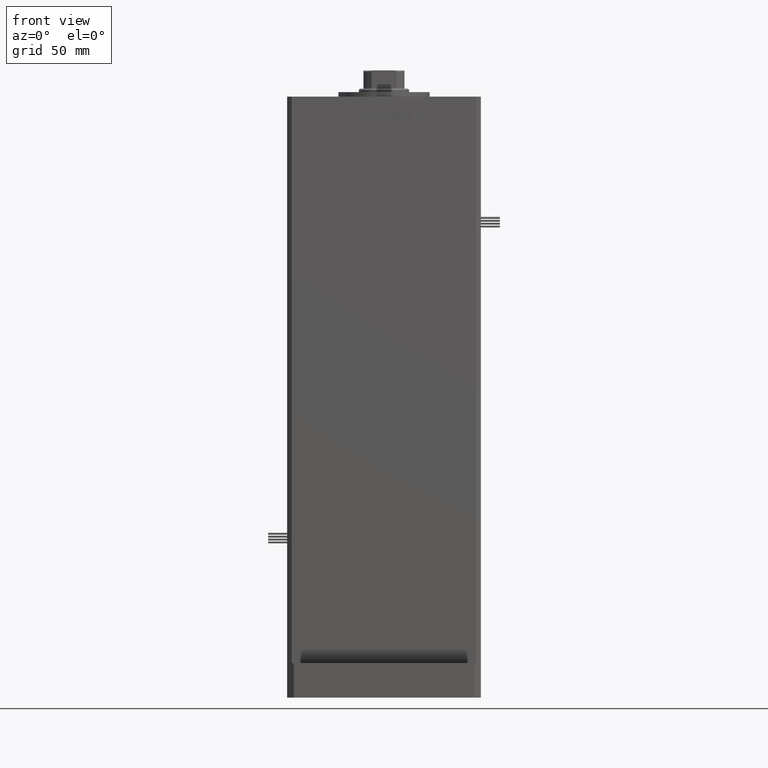
[diagram: clean part render]
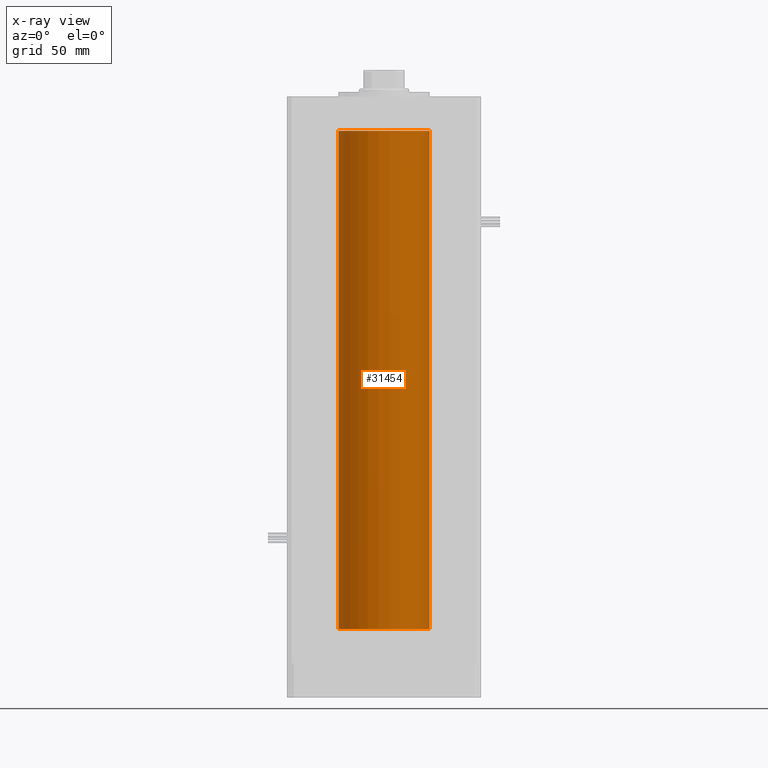
[diagram: x-ray — body ghosted, one internal face saturated and labeled with its STEP entity id]
A machine part, front view, then the same camera in x-ray: the body is ghosted and one INTERNAL B-rep face — a face not visible from any outside direction — is saturated and labeled: STEP entity #31454.
In plain terms, the highlighted cylindrical surface (partial cylindrical patch) has radius 20 mm, axis along (-0, -0, -1).
Its self-contained STEP definition (entity closure, byte-faithful):
#3559 = CIRCLE ( 'NONE', #35384, 20.00000000000000000 ) ;
#3705 = CARTESIAN_POINT ( 'NONE',  ( 20.00000000000000000, 2.449293598294706513E-15, 218.5000000000000000 ) ) ;
#4114 = ORIENTED_EDGE ( 'NONE', *, *, #51533, .F. ) ;
#4972 = CARTESIAN_POINT ( 'NONE',  ( 0.000000000000000000, 0.000000000000000000, 218.5000000000000000 ) ) ;
#5883 = AXIS2_PLACEMENT_3D ( 'NONE', #55118, #11534, #15812 ) ;
#5923 = VERTEX_POINT ( 'NONE', #55505 ) ;
#9406 = CIRCLE ( 'NONE', #44911, 20.00000000000000000 ) ;
#10762 = CARTESIAN_POINT ( 'NONE',  ( 20.00000000000000000, 2.449293598294706513E-15, 218.5000000000000000 ) ) ;
#11177 = DIRECTION ( 'NONE',  ( -0.000000000000000000, 0.000000000000000000, 1.000000000000000000 ) ) ;
#11534 = DIRECTION ( 'NONE',  ( -0.000000000000000000, -0.000000000000000000, -1.000000000000000000 ) ) ;
#13149 = EDGE_CURVE ( 'NONE', #5923, #42530, #3559, .T. ) ;
#15020 = CARTESIAN_POINT ( 'NONE',  ( 20.00000000000000000, 2.449293598294706513E-15, 0.000000000000000000 ) ) ;
#15812 = DIRECTION ( 'NONE',  ( -1.000000000000000000, 0.000000000000000000, 0.000000000000000000 ) ) ;
#16370 = CYLINDRICAL_SURFACE ( 'NONE', #5883, 20.00000000000000000 ) ;
#19704 = DIRECTION ( 'NONE',  ( 1.000000000000000000, 0.000000000000000000, 0.000000000000000000 ) ) ;
#19831 = LINE ( 'NONE', #10762, #50412 ) ;
#22009 = ORIENTED_EDGE ( 'NONE', *, *, #29056, .F. ) ;
#23883 = DIRECTION ( 'NONE',  ( -0.000000000000000000, -0.000000000000000000, -1.000000000000000000 ) ) ;
#24365 = VERTEX_POINT ( 'NONE', #15020 ) ;
#25006 = CARTESIAN_POINT ( 'NONE',  ( -20.00000000000000000, 0.000000000000000000, 218.5000000000000000 ) ) ;
#27773 = CARTESIAN_POINT ( 'NONE',  ( -20.00000000000000000, 0.000000000000000000, 0.000000000000000000 ) ) ;
#28406 = DIRECTION ( 'NONE',  ( -0.000000000000000000, -0.000000000000000000, -1.000000000000000000 ) ) ;
#29056 = EDGE_CURVE ( 'NONE', #29549, #24365, #9406, .T. ) ;
#29549 = VERTEX_POINT ( 'NONE', #27773 ) ;
#31454 = ADVANCED_FACE ( 'NONE', ( #41440 ), #16370, .F. ) ;
#35028 = DIRECTION ( 'NONE',  ( -0.000000000000000000, 0.000000000000000000, 1.000000000000000000 ) ) ;
#35384 = AXIS2_PLACEMENT_3D ( 'NONE', #4972, #11177, #19704 ) ;
#37168 = EDGE_LOOP ( 'NONE', ( #48230, #47949, #22009, #4114 ) ) ;
#39302 = DIRECTION ( 'NONE',  ( 1.000000000000000000, 0.000000000000000000, 0.000000000000000000 ) ) ;
#41440 = FACE_OUTER_BOUND ( 'NONE', #37168, .T. ) ;
#42530 = VERTEX_POINT ( 'NONE', #3705 ) ;
#44911 = AXIS2_PLACEMENT_3D ( 'NONE', #52985, #35028, #39302 ) ;
#46939 = LINE ( 'NONE', #25006, #52237 ) ;
#47949 = ORIENTED_EDGE ( 'NONE', *, *, #55824, .T. ) ;
#48230 = ORIENTED_EDGE ( 'NONE', *, *, #13149, .T. ) ;
#50412 = VECTOR ( 'NONE', #28406, 1000.000000000000000 ) ;
#51533 = EDGE_CURVE ( 'NONE', #5923, #29549, #46939, .T. ) ;
#52237 = VECTOR ( 'NONE', #23883, 1000.000000000000000 ) ;
#52985 = CARTESIAN_POINT ( 'NONE',  ( 0.000000000000000000, 0.000000000000000000, 0.000000000000000000 ) ) ;
#55118 = CARTESIAN_POINT ( 'NONE',  ( 0.000000000000000000, 0.000000000000000000, 218.5000000000000000 ) ) ;
#55505 = CARTESIAN_POINT ( 'NONE',  ( -20.00000000000000000, 0.000000000000000000, 218.5000000000000000 ) ) ;
#55824 = EDGE_CURVE ( 'NONE', #42530, #24365, #19831, .T. ) ;